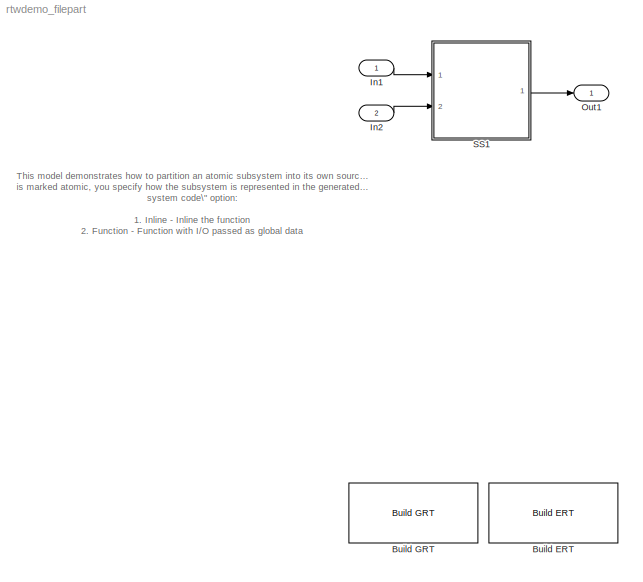
MODEL rtwdemo_filepart
KIND model
BLOCK [Reference] Build ERT  REF=rtwdemowidgets/Build ERT
  Ports = []
  ShowPortLabels = on
  SourceBlock = rtwdemowidgets/Build ERT
  attrib_overrides = {}
BLOCK [Reference] Build GRT  REF=rtwdemowidgets/Build GRT
  Ports = []
  ShowPortLabels = on
  SourceBlock = rtwdemowidgets/Build GRT
  attrib_overrides = {}
BLOCK [Inport] In1
  IconDisplay = Port number
  LatchInput = off
  Port = 1
BLOCK [Inport] In2
  IconDisplay = Port number
  LatchInput = off
  Port = 2
BLOCK [Outport] Out1
  BusOutputAsStruct = off
  IconDisplay = Port number
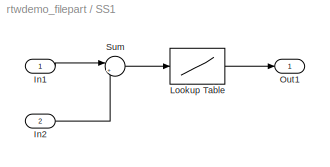
BLOCK [SubSystem] SS1
  MinAlgLoopOccurrences = off
  Ports = [2, 1]
  PropExecContextAcrossSSBoundary = on
  RTWFcnName = myfun
  RTWFcnNameOpts = User specified
  RTWFileName = myfile
  RTWFileNameOpts = User specified
  RTWSystemCode = Function
  TreatAsAtomicUnit = on
BLOCK [Inport] SS1/In1
  IconDisplay = Port number
  LatchInput = off
  Port = 1
BLOCK [Inport] SS1/In2
  IconDisplay = Port number
  LatchInput = off
  Port = 2
BLOCK [Lookup] SS1/Lookup Table
  DialogController = Simulink.DDGSource
  InputValues = [-5:5]
  OutputValues = tanh([-5:5])
  SaturateOnIntegerOverflow = off
BLOCK [Outport] SS1/Out1
  BusOutputAsStruct = off
  IconDisplay = Port number
BLOCK [Sum] SS1/Sum
  IconShape = round
  InputSameDT = off
  Inputs = |++
  OutDataTypeMode = Inherit via internal rule
  Ports = [2, 1]
  SaturateOnIntegerOverflow = off
ANNOTATION (root): This model demonstrates how to partition an atomic subsystem into its own source file. Once a system\nis marked atomic, you specify how the subsystem is represented in the generated code via the \"RTW\nsystem code\" option:\n\n1. Inline - Inline the function\n2. Function - Function with I/O passed as global data\n3. Reusable Function - Function with I/O passed as function arguments\n4. Auto - Let ...<+573ch>
LINE In1:1 -> SS1:1
LINE In2:1 -> SS1:2
LINE SS1/In1:1 -> SS1/Sum:1
LINE SS1/In2:1 -> SS1/Sum:2
LINE SS1/Lookup Table:1 -> SS1/Out1:1
LINE SS1/Sum:1 -> SS1/Lookup Table:1
LINE SS1:1 -> Out1:1
